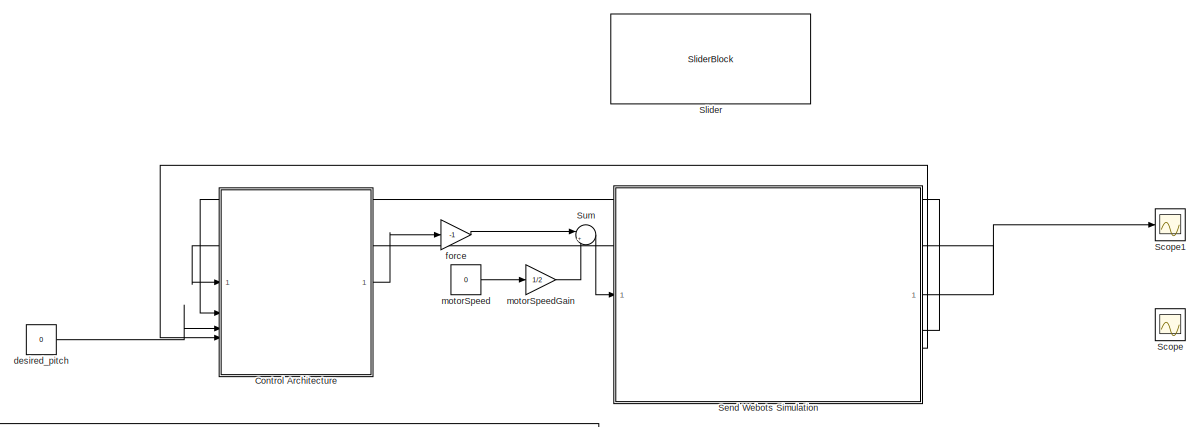
[diagram: root canvas - part 1/3, top right region]
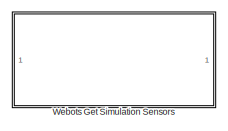
[diagram: root canvas - part 2/3, top left region]
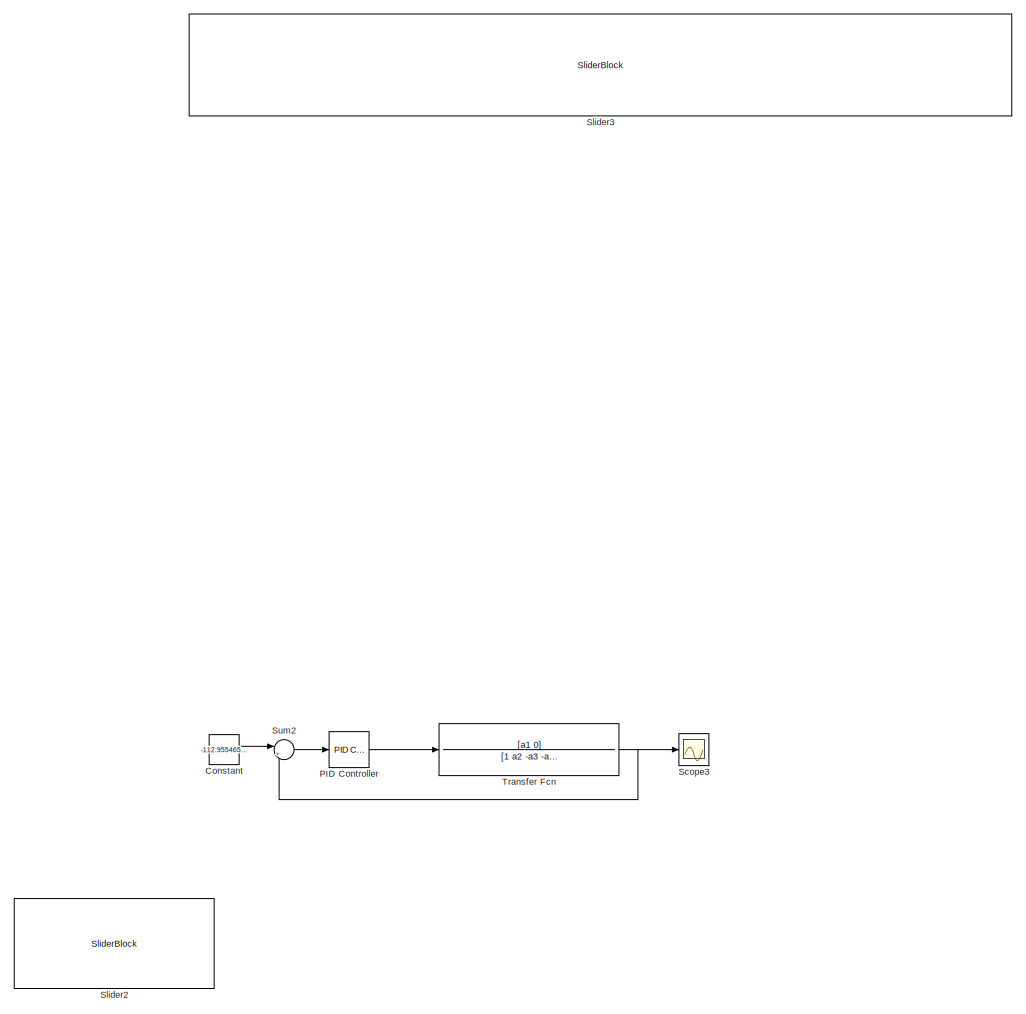
[diagram: root canvas - part 3/3, central region]
MODEL slx_6c1eb8614808
KIND model
CONFIG AbsTol = auto
CONFIG EnableMultiTasking = off
CONFIG FixedStep = 0.016
CONFIG MaxStep = auto
CONFIG MinStep = auto
CONFIG RelTol = 1e-3
CONFIG SampleTimeConstraint = Unconstrained
CONFIG SolverName = ode5
CONFIG StartTime = 0.0
CONFIG StopTime = inf
BLOCK [Constant] Constant
  Commented = on
  Value = -112.9554655870445
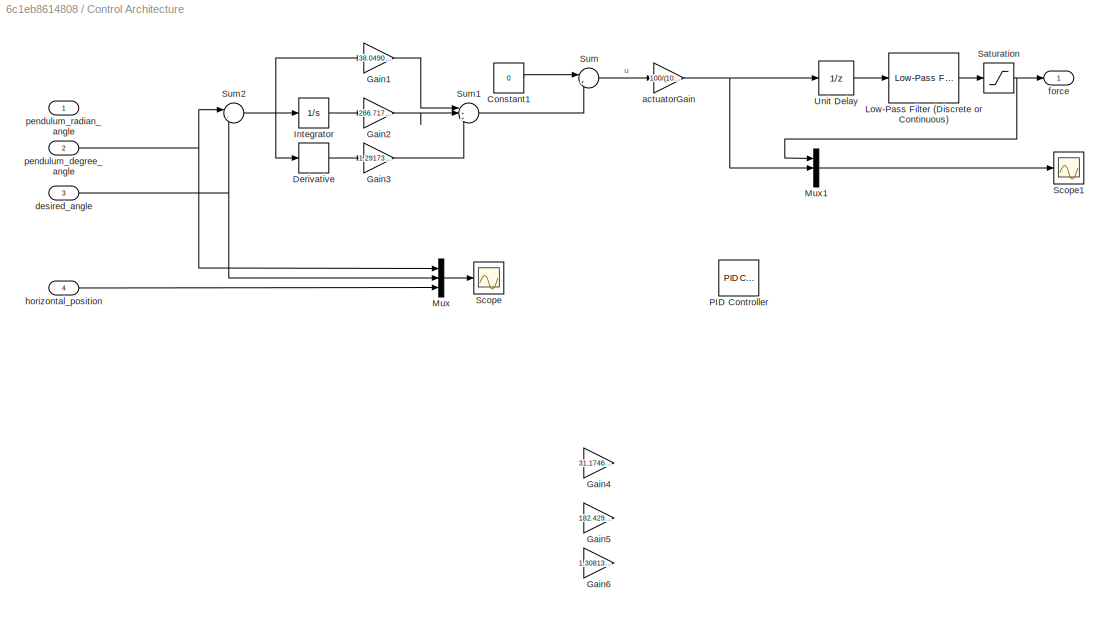
BLOCK [SubSystem] Control Architecture
BLOCK [Constant] Control Architecture/Constant1
  Value = 0
BLOCK [Derivative] Control Architecture/Derivative
  CoefficientInTFapproximation = 0.016
BLOCK [Gain] Control Architecture/Gain1
  Gain = 38.0490093619521
BLOCK [Gain] Control Architecture/Gain2
  Gain = 266.717514633212
BLOCK [Gain] Control Architecture/Gain3
  Gain = 1.2917321164317
BLOCK [Gain] Control Architecture/Gain4
  Commented = on
  Gain = 31.1746218775599
BLOCK [Gain] Control Architecture/Gain5
  Commented = on
  Gain = 182.429126589535
BLOCK [Gain] Control Architecture/Gain6
  Commented = on
  Gain = 1.30813178698339
BLOCK [Integrator] Control Architecture/Integrator
  AbsoluteTolerance = 0.016
BLOCK [Reference] Control Architecture/Low-Pass Filter (Discrete or Continuous)  REF=eeGeneralControl/Low-Pass Filter
(Discrete or Continuous)
  LibrarySourceBlock = ee_sl_lib/General Control/Low-Pass Filter\n(Discrete or Continuous)
  SourceBlock = eeGeneralControl/Low-Pass Filter\n(Discrete or Continuous)
  SourceType = Low-Pass Filter (Discrete or Continuous)
BLOCK [Mux] Control Architecture/Mux
  DisplayOption = bar
  Inputs = 3
BLOCK [Mux] Control Architecture/Mux1
  DisplayOption = bar
  Inputs = 3
BLOCK [Reference] Control Architecture/PID Controller  REF=slpidlib/PID Controller
  Commented = on
  LibrarySourceBlock = simulink/Continuous/PID Controller
  SourceBlock = slpidlib/PID Controller
  SourceType = PID 1dof
BLOCK [Saturate] Control Architecture/Saturation
  LowerLimit = -100
  UpperLimit = 100
BLOCK [Scope] Control Architecture/Scope
  Floating = off
  NumInputPorts = 1
  ScopeSpecificationString = Simulink.scopes.TimeScopeBlockCfg('CurrentConfiguration', extmgr.ConfigurationSet(extmgr.Configuration('Core','General UI',true),extmgr.Configuration('Core','Source UI',true),extmgr.Configuration('Sources','WiredSimulink',true,'DataLoggingVariableName','ScopeData1'),extmgr.Configuration('Visuals','Time Domain',true,'SerializedDisplays',{struct('MinYLimReal','-1604.70518','MaxYLimReal','178.30058',...<+1647ch>
BLOCK [Scope] Control Architecture/Scope1
  Floating = off
  NumInputPorts = 1
  ScopeSpecificationString = Simulink.scopes.TimeScopeBlockCfg('CurrentConfiguration', extmgr.ConfigurationSet(extmgr.Configuration('Core','General UI',true),extmgr.Configuration('Core','Source UI',true),extmgr.Configuration('Sources','WiredSimulink',true,'DataLoggingVariableName','ScopeData2'),extmgr.Configuration('Visuals','Time Domain',true,'SerializedDisplays',{struct('MinYLimReal','-107.55088','MaxYLimReal','11.9501','YL...<+1615ch>
BLOCK [Sum] Control Architecture/Sum
  Inputs = |++
BLOCK [Sum] Control Architecture/Sum1
  Inputs = |+++
BLOCK [Sum] Control Architecture/Sum2
  Inputs = |-+
BLOCK [UnitDelay] Control Architecture/Unit Delay
  HasFrameUpgradeWarning = on
  SampleTime = -1
BLOCK [Gain] Control Architecture/actuatorGain
  Gain = 100/(1000)
BLOCK [Inport] Control Architecture/desired_angle
  Port = 3
BLOCK [Outport] Control Architecture/force
BLOCK [Inport] Control Architecture/horizontal_position
  Port = 4
BLOCK [Inport] Control Architecture/pendulum_degree_angle
  Port = 2
BLOCK [Inport] Control Architecture/pendulum_radian_angle
  NameLocation = top
BLOCK [Reference] PID Controller  REF=slpidlib/PID Controller
  Commented = on
  LibrarySourceBlock = simulink/Continuous/PID Controller
  SourceBlock = slpidlib/PID Controller
  SourceType = PID 1dof
BLOCK [Scope] Scope
  Floating = off
  NumInputPorts = 1
  ScopeSpecificationString = Simulink.scopes.TimeScopeBlockCfg('CurrentConfiguration', extmgr.ConfigurationSet(extmgr.Configuration('Core','General UI',true),extmgr.Configuration('Core','Source UI',true),extmgr.Configuration('Sources','WiredSimulink',true),extmgr.Configuration('Visuals','Time Domain',true,'SerializedDisplays',{struct('MinYLimReal','-104.46217','MaxYLimReal','11.60691','YLabelReal','','MinYLimMag',' 0.00000','...<+1493ch>
BLOCK [Scope] Scope1
  Floating = off
  NumInputPorts = 1
  ScopeSpecificationString = Simulink.scopes.TimeScopeBlockCfg('CurrentConfiguration', extmgr.ConfigurationSet(extmgr.Configuration('Core','General UI',true),extmgr.Configuration('Core','Source UI',true),extmgr.Configuration('Sources','WiredSimulink',true,'DataLoggingVariableName','ScopeData1'),extmgr.Configuration('Visuals','Time Domain',true,'SerializedDisplays',{struct('MinYLimReal','-1.92851','MaxYLimReal','0.21428','YLab...<+1512ch>
BLOCK [Scope] Scope3
  Commented = on
  Floating = off
  NumInputPorts = 1
  ScopeSpecificationString = Simulink.scopes.TimeScopeBlockCfg('CurrentConfiguration', extmgr.ConfigurationSet(extmgr.Configuration('Core','General UI',true),extmgr.Configuration('Core','Source UI',true),extmgr.Configuration('Sources','WiredSimulink',true,'DataLoggingVariableName','ScopeData1'),extmgr.Configuration('Visuals','Time Domain',true,'SerializedDisplays',{struct('MinYLimReal','-80979417155250256853805277177820653318...<+3288ch>
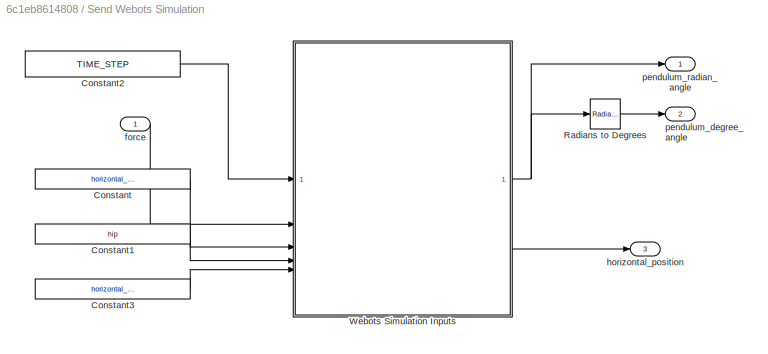
BLOCK [SubSystem] Send Webots Simulation
BLOCK [Constant] Send Webots Simulation/Constant
  Value = horizontal_motor
BLOCK [Constant] Send Webots Simulation/Constant1
  Value = hip
BLOCK [Constant] Send Webots Simulation/Constant2
  Value = TIME_STEP
BLOCK [Constant] Send Webots Simulation/Constant3
  Value = horizontal_position_sensor
BLOCK [Reference] Send Webots Simulation/Radians to Degrees  REF=simulink_extras/Transformations/Radians
to Degrees
  SourceBlock = simulink_extras/Transformations/Radians\nto Degrees
  SourceType = RadiansToDegrees
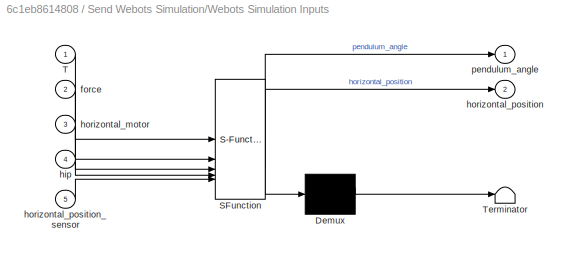
BLOCK [SubSystem] Send Webots Simulation/Webots Simulation Inputs
  ErrorFcn = Stateflow.Translate.translate
  PermitHierarchicalResolution = ExplicitOnly
  SFBlockType = MATLAB Function
  TreatAsAtomicUnit = on
BLOCK [Demux] Send Webots Simulation/Webots Simulation Inputs/ Demux 
  Outputs = 1
BLOCK [S-Function] Send Webots Simulation/Webots Simulation Inputs/ SFunction 
  EnableBusSupport = on
  FunctionName = sf_sfun
  PortCounts = [5 3]
  SFcnIsStateOwnerBlock = off
  SFunctionDeploymentMode = off
  Tag = Stateflow S-Function 2
BLOCK [Terminator] Send Webots Simulation/Webots Simulation Inputs/ Terminator 
BLOCK [Inport] Send Webots Simulation/Webots Simulation Inputs/T
BLOCK [Inport] Send Webots Simulation/Webots Simulation Inputs/force
  Port = 2
BLOCK [Inport] Send Webots Simulation/Webots Simulation Inputs/hip
  Port = 4
BLOCK [Inport] Send Webots Simulation/Webots Simulation Inputs/horizontal_motor
  Port = 3
BLOCK [Outport] Send Webots Simulation/Webots Simulation Inputs/horizontal_position
  Port = 2
BLOCK [Inport] Send Webots Simulation/Webots Simulation Inputs/horizontal_position_sensor
  Port = 5
BLOCK [Outport] Send Webots Simulation/Webots Simulation Inputs/pendulum_angle
BLOCK [Inport] Send Webots Simulation/force
BLOCK [Outport] Send Webots Simulation/horizontal_position
  Port = 3
BLOCK [Outport] Send Webots Simulation/pendulum_degree_angle
  Port = 2
BLOCK [Outport] Send Webots Simulation/pendulum_radian_angle
BLOCK [SliderBlock] Slider
  ScaleMax = 9.99
  ScaleMin = -9.99
BLOCK [SliderBlock] Slider2
  Commented = on
  ScaleMax = 180
  ScaleMin = -180
BLOCK [SliderBlock] Slider3
  ScaleMax = 5
  ScaleMin = -5
BLOCK [Sum] Sum
  Inputs = |++
BLOCK [Sum] Sum2
  Commented = on
  Inputs = |+-
BLOCK [TransferFcn] Transfer Fcn
  Commented = on
  Denominator = [1 a2 -a3  -a4]
  Numerator = [a1 0]
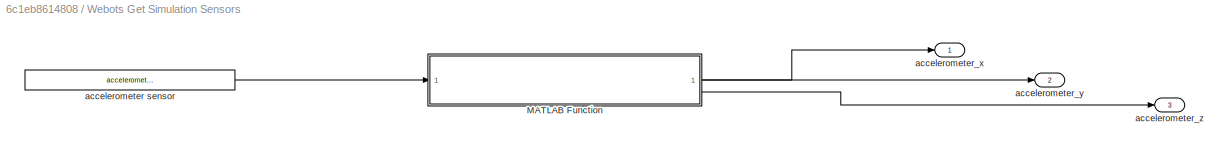
BLOCK [SubSystem] Webots Get Simulation Sensors
  Commented = on
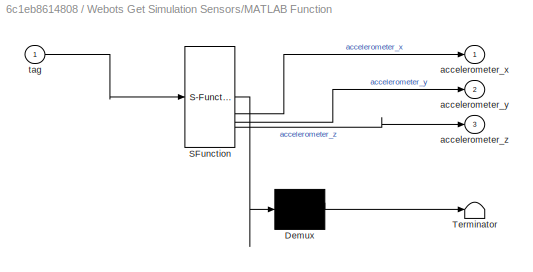
BLOCK [SubSystem] Webots Get Simulation Sensors/MATLAB Function
  ErrorFcn = Stateflow.Translate.translate
  PermitHierarchicalResolution = ExplicitOnly
  SFBlockType = MATLAB Function
  TreatAsAtomicUnit = on
BLOCK [Demux] Webots Get Simulation Sensors/MATLAB Function/ Demux 
  Outputs = 1
BLOCK [S-Function] Webots Get Simulation Sensors/MATLAB Function/ SFunction 
  EnableBusSupport = on
  FunctionName = sf_sfun
  PortCounts = [1 4]
  SFcnIsStateOwnerBlock = off
  SFunctionDeploymentMode = off
  Tag = Stateflow S-Function 1
BLOCK [Terminator] Webots Get Simulation Sensors/MATLAB Function/ Terminator 
BLOCK [Outport] Webots Get Simulation Sensors/MATLAB Function/accelerometer_x
BLOCK [Outport] Webots Get Simulation Sensors/MATLAB Function/accelerometer_y
  Port = 2
BLOCK [Outport] Webots Get Simulation Sensors/MATLAB Function/accelerometer_z
  Port = 3
BLOCK [Inport] Webots Get Simulation Sensors/MATLAB Function/tag
BLOCK [Constant] Webots Get Simulation Sensors/accelerometer sensor
  Value = accelerometer_sensor
BLOCK [Outport] Webots Get Simulation Sensors/accelerometer_x
BLOCK [Outport] Webots Get Simulation Sensors/accelerometer_y
  Port = 2
BLOCK [Outport] Webots Get Simulation Sensors/accelerometer_z
  Port = 3
BLOCK [Constant] desired_pitch
  Value = 0
BLOCK [Gain] force
  Gain = -1
BLOCK [Constant] motorSpeed
  Value = 0
BLOCK [Gain] motorSpeedGain
  Gain = 1/2
LINE Constant:1 -> Sum2:1
LINE Control Architecture/Constant1:1 -> Control Architecture/Sum:1
LINE Control Architecture/Derivative:1 -> Control Architecture/Gain3:1
LINE Control Architecture/Gain1:1 -> Control Architecture/Sum1:1
LINE Control Architecture/Gain2:1 -> Control Architecture/Sum1:2
LINE Control Architecture/Gain3:1 -> Control Architecture/Sum1:3
LINE Control Architecture/Integrator:1 -> Control Architecture/Gain2:1
LINE Control Architecture/Low-Pass Filter (Discrete or Continuous):1 -> Control Architecture/Saturation:1
LINE Control Architecture/Mux1:1 -> Control Architecture/Scope1:1
LINE Control Architecture/Mux:1 -> Control Architecture/Scope:1
NET Control Architecture/Saturation:1 -> Control Architecture/Mux1:1, Control Architecture/force:1
LINE Control Architecture/Sum1:1 -> Control Architecture/Sum:2
NET Control Architecture/Sum2:1 -> Control Architecture/Derivative:1, Control Architecture/Gain1:1, Control Architecture/Integrator:1
LINE Control Architecture/Sum:1 -> Control Architecture/actuatorGain:1
LINE Control Architecture/Unit Delay:1 -> Control Architecture/Low-Pass Filter (Discrete or Continuous):1
NET Control Architecture/actuatorGain:1 -> Control Architecture/Mux1:2, Control Architecture/Unit Delay:1
NET Control Architecture/desired_angle:1 -> Control Architecture/Mux:2, Control Architecture/Sum2:2
LINE Control Architecture/horizontal_position:1 -> Control Architecture/Mux:3
NET Control Architecture/pendulum_degree_angle:1 -> Control Architecture/Mux:1, Control Architecture/Sum2:1
LINE Control Architecture:1 -> force:1
LINE PID Controller:1 -> Transfer Fcn:1
LINE Send Webots Simulation/Constant1:1 -> Send Webots Simulation/Webots Simulation Inputs:4
LINE Send Webots Simulation/Constant2:1 -> Send Webots Simulation/Webots Simulation Inputs:1
LINE Send Webots Simulation/Constant3:1 -> Send Webots Simulation/Webots Simulation Inputs:5
LINE Send Webots Simulation/Constant:1 -> Send Webots Simulation/Webots Simulation Inputs:3
LINE Send Webots Simulation/Radians to Degrees:1 -> Send Webots Simulation/pendulum_degree_angle:1
NET Send Webots Simulation/Webots Simulation Inputs:1 -> Send Webots Simulation/Radians to Degrees:1, Send Webots Simulation/pendulum_radian_angle:1
LINE Send Webots Simulation/Webots Simulation Inputs:2 -> Send Webots Simulation/horizontal_position:1
LINE Send Webots Simulation/force:1 -> Send Webots Simulation/Webots Simulation Inputs:2
NET Send Webots Simulation:1 -> Control Architecture:1, Scope1:1
LINE Send Webots Simulation:2 -> Control Architecture:2
LINE Send Webots Simulation:3 -> Control Architecture:4
LINE Sum2:1 -> PID Controller:1
LINE Sum:1 -> Send Webots Simulation:1
NET Transfer Fcn:1 -> Scope3:1, Sum2:2
LINE Webots Get Simulation Sensors/MATLAB Function:1 -> Webots Get Simulation Sensors/accelerometer_x:1
LINE Webots Get Simulation Sensors/MATLAB Function:2 -> Webots Get Simulation Sensors/accelerometer_y:1
LINE Webots Get Simulation Sensors/MATLAB Function:3 -> Webots Get Simulation Sensors/accelerometer_z:1
LINE Webots Get Simulation Sensors/accelerometer sensor:1 -> Webots Get Simulation Sensors/MATLAB Function:1
LINE desired_pitch:1 -> Control Architecture:3
LINE force:1 -> Sum:1
LINE motorSpeed:1 -> motorSpeedGain:1
LINE motorSpeedGain:1 -> Sum:2
note: NET lines group one-source signal fan-out (src -> all destinations, sorted); 1:1 wires keep LINE
CHART Webots Get Simulation Sensors/MATLAB Function states=1 transitions=1
  STATE_LABEL 'eML_blk_kernel()'
  STATE_LABEL 'SCRIPT:\nfunction [accelerometer_x,accelerometer_y,accelerometer_z] = accelerometer_sensor_get(tag)\n\nperiod = wb_accelerometer_get_sampling_period(tag)\nvalues = wb_accelerometer_get_values(tag);\naccelerometer_x = values(1);\naccelerometer_y = values(2);\naccelerometer_z = values(3);\n'
CHART Send Webots Simulation/Webots Simulation Inputs states=1 transitions=1
  STATE_LABEL 'eML_blk_kernel()'
  STATE_LABEL 'SCRIPT:\nfunction [pendulum_angle,horizontal_position]  =   simulation(T,force,horizontal_motor,hip,horizontal_position_sensor)\n\n\n\nwb_robot_step(T)\n\nwb_motor_set_force(horizontal_motor,force);\n\npendulum_angle=0.0;\nhorizontal_position=0.0;\nhorizontal_position1 = wb_position_sensor_get_value(horizontal_position_sensor);\nhorizontal_position=horizontal_position1;\nhip_value = wb_position_sensor_get_valu...<+40ch>'
CHART  states=0 transitions=0
CHART  states=0 transitions=0
